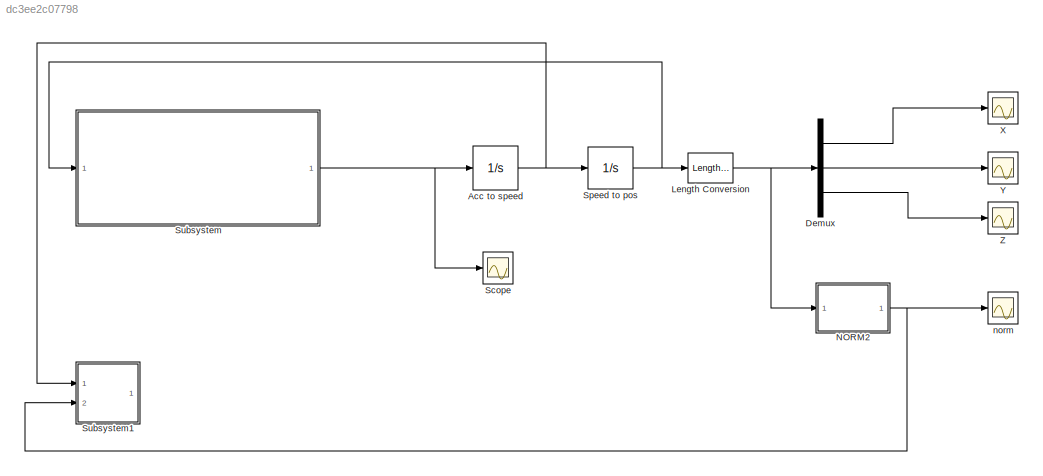
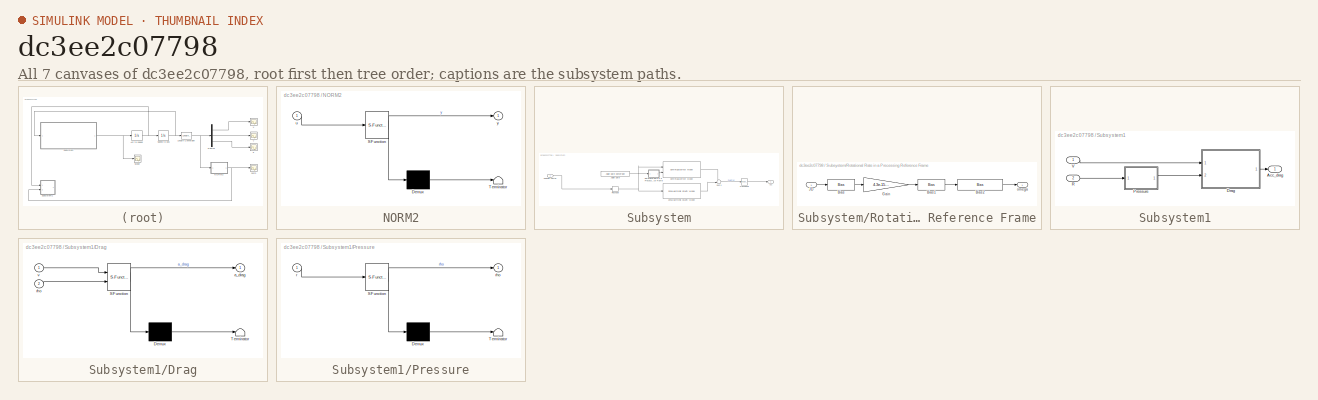
[diagram: thumbnail index - all 7 canvases of the model, root first then tree order]
MODEL slx_dc3ee2c07798
KIND model
CONFIG AbsTol = auto
CONFIG EnableMultiTasking = off
CONFIG FixedStep = auto
CONFIG MaxStep = auto
CONFIG MinStep = auto
CONFIG RelTol = 1e-3
CONFIG SampleTimeConstraint = Unconstrained
CONFIG Solver = VariableStepAuto
CONFIG SolverName = VariableStepAuto
CONFIG StartTime = 0.0
CONFIG StopTime = 15000
BLOCK [Integrator] Acc to speed
  InitialCondition = [-2871.828;-5954.63;3774.64]
  Ports = [1, 1]
BLOCK [Demux] Demux
  Outputs = 3
  Ports = [1, 3]
BLOCK [Reference] Length Conversion  REF=aerolibconvert2/Length Conversion
  Ports = [1, 1]
  SourceBlock = aerolibconvert2/Length Conversion
  SourceType = Length Conversion
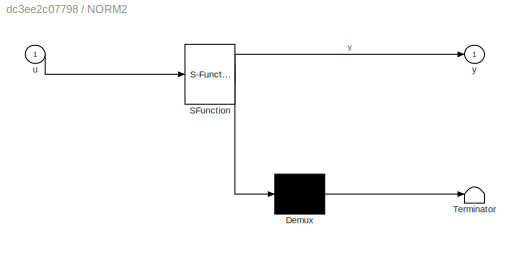
BLOCK [SubSystem] NORM2
  ErrorFcn = Stateflow.Translate.translate
  PermitHierarchicalResolution = ExplicitOnly
  Ports = [1, 1]
  RequestExecContextInheritance = off
  SFBlockType = MATLAB Function
  TreatAsAtomicUnit = on
BLOCK [Demux] NORM2/ Demux 
  Outputs = 1
  Ports = [1, 1]
BLOCK [S-Function] NORM2/ SFunction 
  EnableBusSupport = off
  FunctionName = sf_sfun
  PortCounts = [1 2]
  Ports = [1, 2]
  SFcnIsStateOwnerBlock = off
  SFunctionDeploymentMode = off
  Tag = Stateflow S-Function Orbit_simu_1_R2016b 4
BLOCK [Terminator] NORM2/ Terminator 
BLOCK [Inport] NORM2/u
BLOCK [Outport] NORM2/y
BLOCK [Scope] Scope
  Floating = off
  NumInputPorts = 1
  Ports = [1]
  ScopeSpecificationString = Simulink.scopes.TimeScopeBlockCfg('CurrentConfiguration', extmgr.ConfigurationSet(extmgr.Configuration('Core','General UI',true),extmgr.Configuration('Core','Source UI',true),extmgr.Configuration('Sources','WiredSimulink',true,'DataLoggingVariableName','ScopeData1'),extmgr.Configuration('Visuals','Time Domain',true,'SerializedDisplays',{struct('MinYLimReal','-10.35099','MaxYLimReal','10.20495','YL...<+1459ch>
BLOCK [Integrator] Speed to pos
  InitialCondition = [2383.89e3;2594.67e3;5906.12e3]
  Ports = [1, 1]
BLOCK [SubSystem] Subsystem
  Ports = [1, 1]
  RequestExecContextInheritance = off
BLOCK [Outport] Subsystem/Acc
BLOCK [Reference] Subsystem/Centrifugal Effect Model  REF=aerolibgravity2/Centrifugal Effect Model
  Ports = [2, 1]
  SourceBlock = aerolibgravity2/Centrifugal Effect Model
  SourceType = Centrifugal Effect Model
BLOCK [Reference] Subsystem/Julian Date  REF=aerolibconvert2/Julian Date Conversion
  Ports = [0, 1]
  SourceBlock = aerolibconvert2/Julian Date Conversion
  SourceType = JulianDate
BLOCK [Inport] Subsystem/Position vector
BLOCK [Reshape] Subsystem/Reshape
  OutputDimensionality = Row vector (2-D)
  Ports = [1, 1]
BLOCK [SubSystem] Subsystem/Rotational Rate in a Precessing Reference Frame
  Ports = [1, 1]
  RequestExecContextInheritance = off
BLOCK [Bias] Subsystem/Rotational Rate in a Precessing Reference Frame/Bias
  Bias = -2451545
  SaturateOnIntegerOverflow = off
BLOCK [Bias] Subsystem/Rotational Rate in a Precessing Reference Frame/Bias1
  Bias = 7.086e-12
  SaturateOnIntegerOverflow = off
BLOCK [Bias] Subsystem/Rotational Rate in a Precessing Reference Frame/Bias2
  Bias = 7.2921151467e-5
  SaturateOnIntegerOverflow = off
BLOCK [Gain] Subsystem/Rotational Rate in a Precessing Reference Frame/Gain
  Gain = 4.3e-15/36525
BLOCK [Inport] Subsystem/Rotational Rate in a Precessing Reference Frame/JD
BLOCK [Outport] Subsystem/Rotational Rate in a Precessing Reference Frame/omega
BLOCK [Sum] Subsystem/Sum1
  Inputs = ++|
  Ports = [2, 1]
BLOCK [Math] Subsystem/Transpose
  Operator = transpose
  Ports = [1, 1]
BLOCK [Reference] Subsystem/Zonal Harmonic Gravity Model  REF=aerolibgravity2/Zonal Harmonic Gravity Model
  Ports = [1, 1]
  SourceBlock = aerolibgravity2/Zonal Harmonic Gravity Model
  SourceType = Zonal Harmonic Gravity Model
BLOCK [SubSystem] Subsystem1
  Ports = [2, 1]
  RequestExecContextInheritance = off
BLOCK [Outport] Subsystem1/Acc_drag
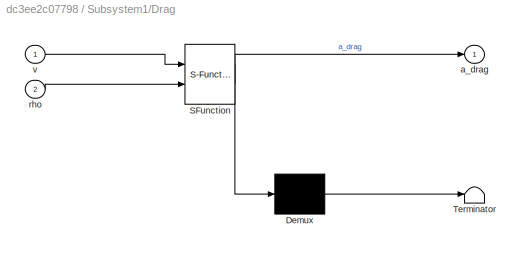
BLOCK [SubSystem] Subsystem1/Drag
  ErrorFcn = Stateflow.Translate.translate
  PermitHierarchicalResolution = ExplicitOnly
  Ports = [2, 1]
  RequestExecContextInheritance = off
  SFBlockType = MATLAB Function
  TreatAsAtomicUnit = on
BLOCK [Demux] Subsystem1/Drag/ Demux 
  Outputs = 1
  Ports = [1, 1]
BLOCK [S-Function] Subsystem1/Drag/ SFunction 
  EnableBusSupport = off
  FunctionName = sf_sfun
  PortCounts = [2 2]
  Ports = [2, 2]
  SFcnIsStateOwnerBlock = off
  SFunctionDeploymentMode = off
  Tag = Stateflow S-Function Orbit_simu_1_R2016b 1
BLOCK [Terminator] Subsystem1/Drag/ Terminator 
BLOCK [Outport] Subsystem1/Drag/a_drag
BLOCK [Inport] Subsystem1/Drag/rho
  Port = 2
BLOCK [Inport] Subsystem1/Drag/v
BLOCK [SubSystem] Subsystem1/Pressure
  ErrorFcn = Stateflow.Translate.translate
  PermitHierarchicalResolution = ExplicitOnly
  Ports = [1, 1]
  RequestExecContextInheritance = off
  SFBlockType = MATLAB Function
  TreatAsAtomicUnit = on
BLOCK [Demux] Subsystem1/Pressure/ Demux 
  Outputs = 1
  Ports = [1, 1]
BLOCK [S-Function] Subsystem1/Pressure/ SFunction 
  EnableBusSupport = off
  FunctionName = sf_sfun
  PortCounts = [1 2]
  Ports = [1, 2]
  SFcnIsStateOwnerBlock = off
  SFunctionDeploymentMode = off
  Tag = Stateflow S-Function Orbit_simu_1_R2016b 3
BLOCK [Terminator] Subsystem1/Pressure/ Terminator 
BLOCK [Inport] Subsystem1/Pressure/r
BLOCK [Outport] Subsystem1/Pressure/rho
BLOCK [Inport] Subsystem1/R
  Port = 2
BLOCK [Inport] Subsystem1/V
BLOCK [Scope] X
  Floating = off
  NumInputPorts = 1
  Ports = [1]
  ScopeSpecificationString = Simulink.scopes.TimeScopeBlockCfg('CurrentConfiguration', extmgr.ConfigurationSet(extmgr.Configuration('Core','General UI',true),extmgr.Configuration('Core','Source UI',true),extmgr.Configuration('Sources','WiredSimulink',true,'DataLoggingVariableName','ScopeData2'),extmgr.Configuration('Visuals','Time Domain',true,'SerializedDisplays',{struct('MinYLimReal','-4396.04217','MaxYLimReal','4374.53999'...<+1418ch>
BLOCK [Scope] Y
  Floating = off
  NumInputPorts = 1
  Ports = [1]
  ScopeSpecificationString = Simulink.scopes.TimeScopeBlockCfg('CurrentConfiguration', extmgr.ConfigurationSet(extmgr.Configuration('Core','General UI',true),extmgr.Configuration('Core','Source UI',true),extmgr.Configuration('Sources','WiredSimulink',true,'DataLoggingVariableName','ScopeData1'),extmgr.Configuration('Visuals','Time Domain',true,'SerializedDisplays',{struct('MinYLimReal','-7513.74922','MaxYLimReal','7444.86622'...<+1418ch>
BLOCK [Scope] Z
  Floating = off
  NumInputPorts = 1
  Ports = [1]
  ScopeSpecificationString = Simulink.scopes.TimeScopeBlockCfg('CurrentConfiguration', extmgr.ConfigurationSet(extmgr.Configuration('Core','General UI',true),extmgr.Configuration('Core','Source UI',true),extmgr.Configuration('Sources','WiredSimulink',true,'DataLoggingVariableName','ScopeData3'),extmgr.Configuration('Visuals','Time Domain',true,'SerializedDisplays',{struct('MinYLimReal','-8608.02461','MaxYLimReal','8501.23243'...<+1418ch>
BLOCK [Scope] norm
  Floating = off
  NumInputPorts = 1
  Ports = [1]
  ScopeSpecificationString = Simulink.scopes.TimeScopeBlockCfg('CurrentConfiguration', extmgr.ConfigurationSet(extmgr.Configuration('Core','General UI',true),extmgr.Configuration('Core','Source UI',true),extmgr.Configuration('Sources','WiredSimulink',true,'DataLoggingVariableName','ScopeData4'),extmgr.Configuration('Visuals','Time Domain',true,'SerializedDisplays',{struct('MinYLimReal','6865.93699','MaxYLimReal','6965.19553',...<+1436ch>
NET Acc to speed:1 -> Speed to pos:1, Subsystem1:1
LINE Demux:1 -> X:1
LINE Demux:2 -> Y:1
LINE Demux:3 -> Z:1
NET Length Conversion:1 -> Demux:1, NORM2:1
NET NORM2:1 -> Subsystem1:2, norm:1
NET Speed to pos:1 -> Length Conversion:1, Subsystem:1
LINE Subsystem/Centrifugal Effect Model:1 -> Subsystem/Sum1:1
LINE Subsystem/Julian Date:1 -> Subsystem/Rotational Rate in a Precessing Reference Frame:1
LINE Subsystem/Position vector:1 -> Subsystem/Reshape:1
NET Subsystem/Reshape:1 -> Subsystem/Centrifugal Effect Model:1, Subsystem/Zonal Harmonic Gravity Model:1
LINE Subsystem/Rotational Rate in a Precessing Reference Frame/Bias1:1 -> Subsystem/Rotational Rate in a Precessing Reference Frame/Bias2:1
LINE Subsystem/Rotational Rate in a Precessing Reference Frame/Bias2:1 -> Subsystem/Rotational Rate in a Precessing Reference Frame/omega:1
LINE Subsystem/Rotational Rate in a Precessing Reference Frame/Bias:1 -> Subsystem/Rotational Rate in a Precessing Reference Frame/Gain:1
LINE Subsystem/Rotational Rate in a Precessing Reference Frame/Gain:1 -> Subsystem/Rotational Rate in a Precessing Reference Frame/Bias1:1
LINE Subsystem/Rotational Rate in a Precessing Reference Frame/JD:1 -> Subsystem/Rotational Rate in a Precessing Reference Frame/Bias:1
LINE Subsystem/Rotational Rate in a Precessing Reference Frame:1 -> Subsystem/Centrifugal Effect Model:2
LINE Subsystem/Sum1:1 -> Subsystem/Transpose:1
LINE Subsystem/Transpose:1 -> Subsystem/Acc:1
LINE Subsystem/Zonal Harmonic Gravity Model:1 -> Subsystem/Sum1:2
LINE Subsystem1/Drag:1 -> Subsystem1/Acc_drag:1
LINE Subsystem1/Pressure:1 -> Subsystem1/Drag:2
LINE Subsystem1/R:1 -> Subsystem1/Pressure:1
LINE Subsystem1/V:1 -> Subsystem1/Drag:1
NET Subsystem:1 -> Acc to speed:1, Scope:1
note: NET lines group one-source signal fan-out (src -> all destinations, sorted); 1:1 wires keep LINE
CHART Subsystem1/Drag states=1 transitions=1
  STATE_LABEL 'eML_blk_kernel()'
  STATE_LABEL 'SCRIPT:\nfunction a_drag = fcn(v, rho)\narea = 100e-4;\nmass = 3;\nV = norm(v);\nCd = 1.05;\n\na_drag = -0.5*Cd*(area/mass)*rho*V^2;\n'
CHART Subsystem1/Pressure states=1 transitions=1
  STATE_LABEL 'eML_blk_kernel()'
  STATE_LABEL 'SCRIPT:\nfunction rho = fcn(r)\nalt = norm(r);\nA = 1.140564e-10;\nB = -2.130756e-7;\nC = 1.570562e-4;\nD = -0.07029296;\nE = -12.89844;\n\nrho = exp(A*alt^4 + B*alt^3 + C*alt^2 + D*alt + E);\n'
CHART NORM2 states=1 transitions=1
  STATE_LABEL 'eML_blk_kernel()'
  STATE_LABEL 'SCRIPT:\nfunction y = fcn(u)\n\ny = sqrt(u(1)^2+u(2)^2+u(3)^2);\n'
